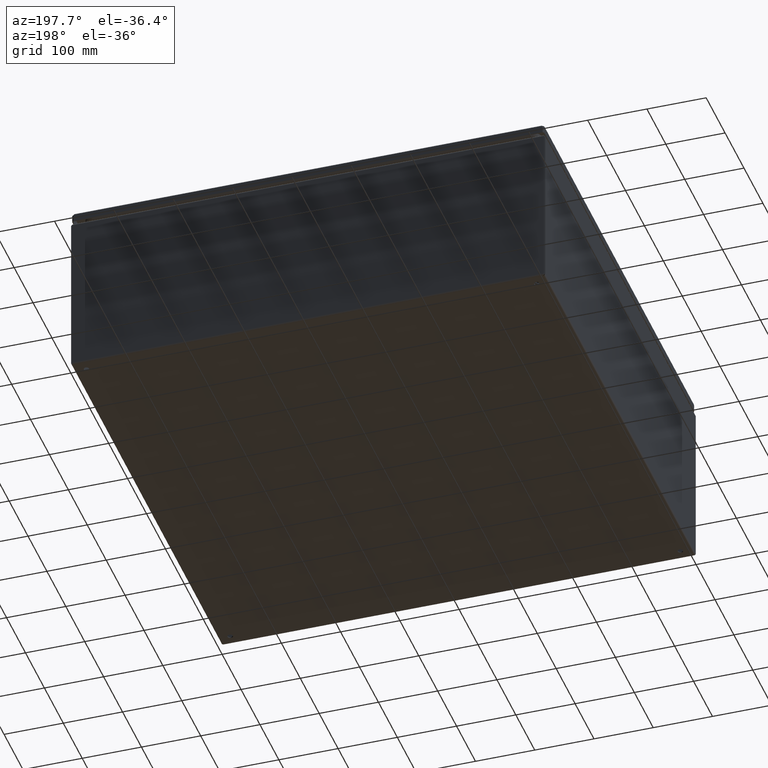
[diagram: clean part render]
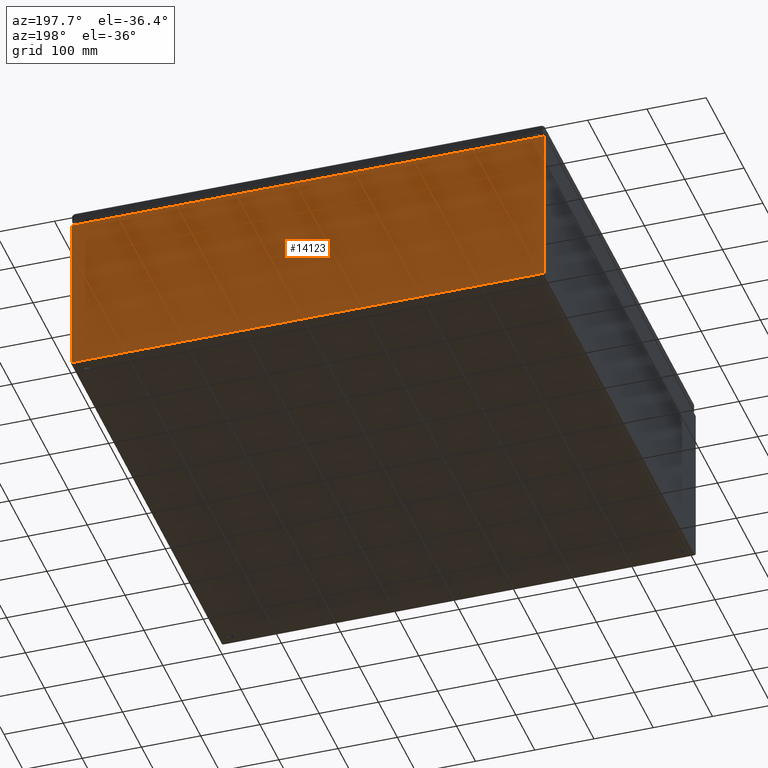
[diagram: same view with one face highlighted and labeled with its STEP entity id]
A machine part, auxiliary view. The second image highlights one B-rep face of the part: STEP entity #14123.
In plain terms, the highlighted planar face has unit normal (0, 1, -0).
Its self-contained STEP definition (entity closure, byte-faithful):
#2748 = DIRECTION ( 'NONE',  ( -1.227063330429480300E-032, -2.004012679828802300E-016, -1.000000000000000000 ) ) ;
#2749 = VECTOR ( 'NONE', #2748, 1000.000000000000000 ) ;
#2750 = CARTESIAN_POINT ( 'NONE',  ( 398.4992928932271600, 400.0000000000003400, 278.5000000000000000 ) ) ;
#2751 = LINE ( 'NONE', #2750, #2749 ) ;
#2752 = CARTESIAN_POINT ( 'NONE',  ( 398.4992928932271600, 400.0000000000002800, 3.000000000000002700 ) ) ;
#2764 = CARTESIAN_POINT ( 'NONE',  ( 398.4992928932271100, 400.0000000000003400, 276.5018117420098100 ) ) ;
#2848 = DIRECTION ( 'NONE',  ( -1.000000000000000000, 6.965025060424440300E-017, 0.0000000000000000000 ) ) ;
#2849 = VECTOR ( 'NONE', #2848, 1000.000000000000000 ) ;
#2850 = CARTESIAN_POINT ( 'NONE',  ( 4383.492221825707000, 400.0000000000001100, 277.0000000000000000 ) ) ;
#2851 = LINE ( 'NONE', #2850, #2849 ) ;
#2853 = CARTESIAN_POINT ( 'NONE',  ( -398.4744118325105000, 400.0000000000004000, 277.0000000000000000 ) ) ;
#2854 = DIRECTION ( 'NONE',  ( 0.0000000000000000000, 0.0000000000000000000, 1.000000000000000000 ) ) ;
#2855 = DIRECTION ( 'NONE',  ( 6.123031769111886300E-017, 1.000000000000000000, -2.004012679828802300E-016 ) ) ;
#2857 = CARTESIAN_POINT ( 'NONE',  ( -393.4992928932960000, 400.0000000000004000, 276.5018117420098100 ) ) ;
#2858 = AXIS2_PLACEMENT_3D ( 'NONE', #2857, #2855, #2854 ) ;
#2859 = CIRCLE ( 'NONE', #2858, 4.999999999972971000 ) ;
#2860 = DIRECTION ( 'NONE',  ( -1.000000000000000000, 6.123031769111886300E-017, 0.0000000000000000000 ) ) ;
#2861 = VECTOR ( 'NONE', #2860, 1000.000000000000000 ) ;
#2862 = CARTESIAN_POINT ( 'NONE',  ( 4383.500000000000900, 400.0000000000000600, 3.000000000000002700 ) ) ;
#2863 = LINE ( 'NONE', #2862, #2861 ) ;
#2864 = CARTESIAN_POINT ( 'NONE',  ( 398.4744118324687200, 400.0000000000004000, 277.0000000000000000 ) ) ;
#2865 = DIRECTION ( 'NONE',  ( 0.0000000000000000000, 0.0000000000000000000, 1.000000000000000000 ) ) ;
#2866 = DIRECTION ( 'NONE',  ( 6.123031769111886300E-017, 1.000000000000000000, -2.004012679828802300E-016 ) ) ;
#2867 = CARTESIAN_POINT ( 'NONE',  ( 393.4992928932206300, 400.0000000000003400, 276.5018117420098100 ) ) ;
#2868 = AXIS2_PLACEMENT_3D ( 'NONE', #2867, #2866, #2865 ) ;
#2869 = CIRCLE ( 'NONE', #2868, 5.000000000006499700 ) ;
#2881 = DIRECTION ( 'NONE',  ( -1.227063330429480300E-032, -2.004012679828802300E-016, -1.000000000000000000 ) ) ;
#2882 = DIRECTION ( 'NONE',  ( 6.123031769111886300E-017, 1.000000000000000000, -2.004012679828802300E-016 ) ) ;
#2883 = CARTESIAN_POINT ( 'NONE',  ( 4383.500000000000900, 400.0000000000001100, 278.5000000000000000 ) ) ;
#2884 = AXIS2_PLACEMENT_3D ( 'NONE', #2883, #2882, #2881 ) ;
#2885 = PLANE ( 'NONE',  #2884 ) ;
#2886 = FACE_OUTER_BOUND ( 'NONE', #13995, .T. ) ;
#2896 = CARTESIAN_POINT ( 'NONE',  ( -398.4992928932688900, 400.0000000000003400, 3.000000000000002700 ) ) ;
#2897 = DIRECTION ( 'NONE',  ( 1.227063330429480300E-032, 2.004012679828802300E-016, 1.000000000000000000 ) ) ;
#2898 = VECTOR ( 'NONE', #2897, 1000.000000000000000 ) ;
#2899 = CARTESIAN_POINT ( 'NONE',  ( -398.4992928932688900, 400.0000000000004000, 278.5000000000000000 ) ) ;
#2900 = LINE ( 'NONE', #2899, #2898 ) ;
#2902 = CARTESIAN_POINT ( 'NONE',  ( -398.4992928932688900, 400.0000000000004000, 276.5018117420098100 ) ) ;
#13995 = EDGE_LOOP ( 'NONE', ( #14086, #14091, #14093, #14097, #14099, #14104 ) ) ;
#14004 = VERTEX_POINT ( 'NONE', #2764 ) ;
#14016 = VERTEX_POINT ( 'NONE', #2752 ) ;
#14018 = EDGE_CURVE ( 'NONE', #14004, #14016, #2751, .T. ) ;
#14086 = ORIENTED_EDGE ( 'NONE', *, *, #14088, .T. ) ;
#14088 = EDGE_CURVE ( 'NONE', #14090, #14004, #2869, .T. ) ;
#14090 = VERTEX_POINT ( 'NONE', #2864 ) ;
#14091 = ORIENTED_EDGE ( 'NONE', *, *, #14018, .T. ) ;
#14093 = ORIENTED_EDGE ( 'NONE', *, *, #14095, .T. ) ;
#14095 = EDGE_CURVE ( 'NONE', #14016, #14117, #2863, .T. ) ;
#14097 = ORIENTED_EDGE ( 'NONE', *, *, #14116, .T. ) ;
#14099 = ORIENTED_EDGE ( 'NONE', *, *, #14100, .T. ) ;
#14100 = EDGE_CURVE ( 'NONE', #14113, #14102, #2859, .T. ) ;
#14102 = VERTEX_POINT ( 'NONE', #2853 ) ;
#14104 = ORIENTED_EDGE ( 'NONE', *, *, #14106, .F. ) ;
#14106 = EDGE_CURVE ( 'NONE', #14090, #14102, #2851, .T. ) ;
#14113 = VERTEX_POINT ( 'NONE', #2902 ) ;
#14116 = EDGE_CURVE ( 'NONE', #14117, #14113, #2900, .T. ) ;
#14117 = VERTEX_POINT ( 'NONE', #2896 ) ;
#14123 = ADVANCED_FACE ( 'NONE', ( #2886 ), #2885, .T. ) ;